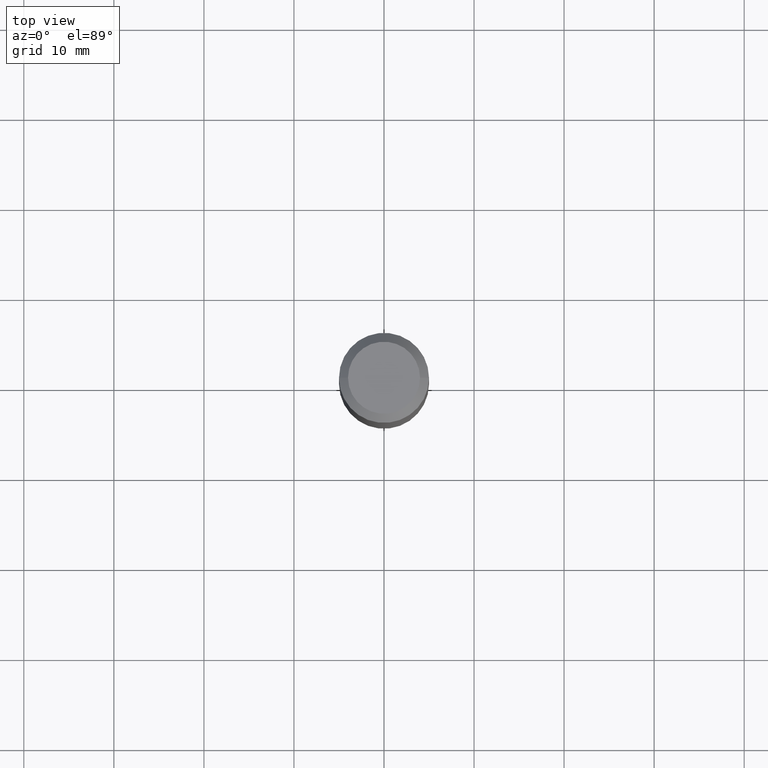
[diagram: clean part render]
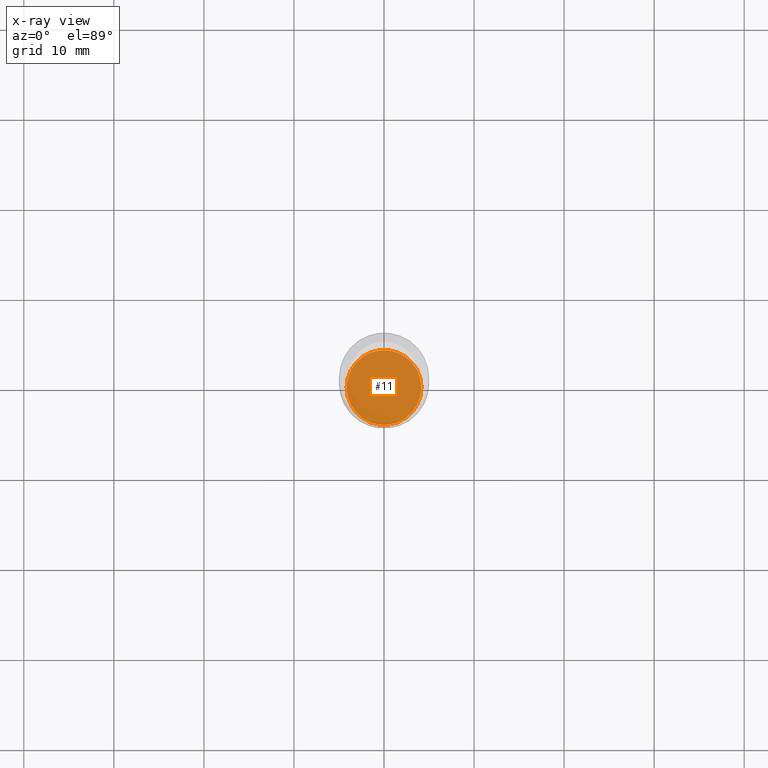
[diagram: x-ray — body ghosted, one internal face saturated and labeled with its STEP entity id]
A machine part, top view, then the same camera in x-ray: the body is ghosted and one INTERNAL B-rep face — a face not visible from any outside direction — is saturated and labeled: STEP entity #11.
In plain terms, the highlighted planar face has unit normal (-0, 0, 1).
Its self-contained STEP definition (entity closure, byte-faithful):
#1 = CARTESIAN_POINT ( 'NONE',  ( 6.027102419723887066E-29, -8.605104907712816179E-15, -2.464599999999999902 ) ) ;
#11 = ADVANCED_FACE ( 'NONE', ( #316 ), #512, .F. ) ;
#40 = DIRECTION ( 'NONE',  ( 1.000000000000000000, -6.982962677686265922E-15, 4.876176775795935793E-29 ) ) ;
#85 = EDGE_CURVE ( 'NONE', #121, #267, #350, .T. ) ;
#108 = CARTESIAN_POINT ( 'NONE',  ( 6.027102419723887066E-29, -8.605104907712816179E-15, -2.464599999999999902 ) ) ;
#121 = VERTEX_POINT ( 'NONE', #401 ) ;
#150 = CIRCLE ( 'NONE', #436, 0.1635500000000000009 ) ;
#174 = CARTESIAN_POINT ( 'NONE',  ( 0.1635500000000000009, -9.747168453648404046E-15, -2.464599999999999902 ) ) ;
#175 = ORIENTED_EDGE ( 'NONE', *, *, #85, .F. ) ;
#180 = EDGE_CURVE ( 'NONE', #267, #121, #150, .T. ) ;
#187 = DIRECTION ( 'NONE',  ( 1.000000000000000000, -6.982962677686260400E-15, 0.000000000000000000 ) ) ;
#192 = AXIS2_PLACEMENT_3D ( 'NONE', #234, #230, #40 ) ;
#230 = DIRECTION ( 'NONE',  ( -2.438088387897960049E-29, 3.491481338843145188E-15, 1.000000000000000000 ) ) ;
#234 = CARTESIAN_POINT ( 'NONE',  ( 6.027102419723887066E-29, -8.605104907712816179E-15, -2.464599999999999902 ) ) ;
#267 = VERTEX_POINT ( 'NONE', #174 ) ;
#316 = FACE_OUTER_BOUND ( 'NONE', #457, .T. ) ;
#318 = DIRECTION ( 'NONE',  ( 1.000000000000000000, -6.982962677686260400E-15, 0.000000000000000000 ) ) ;
#350 = CIRCLE ( 'NONE', #497, 0.1635500000000000009 ) ;
#401 = CARTESIAN_POINT ( 'NONE',  ( -0.1635500000000000009, -7.440363036203059737E-15, -2.464599999999999902 ) ) ;
#405 = DIRECTION ( 'NONE',  ( -2.445468806185136597E-29, 3.491481338843145583E-15, 1.000000000000000000 ) ) ;
#423 = DIRECTION ( 'NONE',  ( -2.445468806185136597E-29, 3.491481338843145583E-15, 1.000000000000000000 ) ) ;
#436 = AXIS2_PLACEMENT_3D ( 'NONE', #108, #405, #187 ) ;
#447 = ORIENTED_EDGE ( 'NONE', *, *, #180, .F. ) ;
#457 = EDGE_LOOP ( 'NONE', ( #447, #175 ) ) ;
#497 = AXIS2_PLACEMENT_3D ( 'NONE', #1, #423, #318 ) ;
#512 = PLANE ( 'NONE',  #192 ) ;